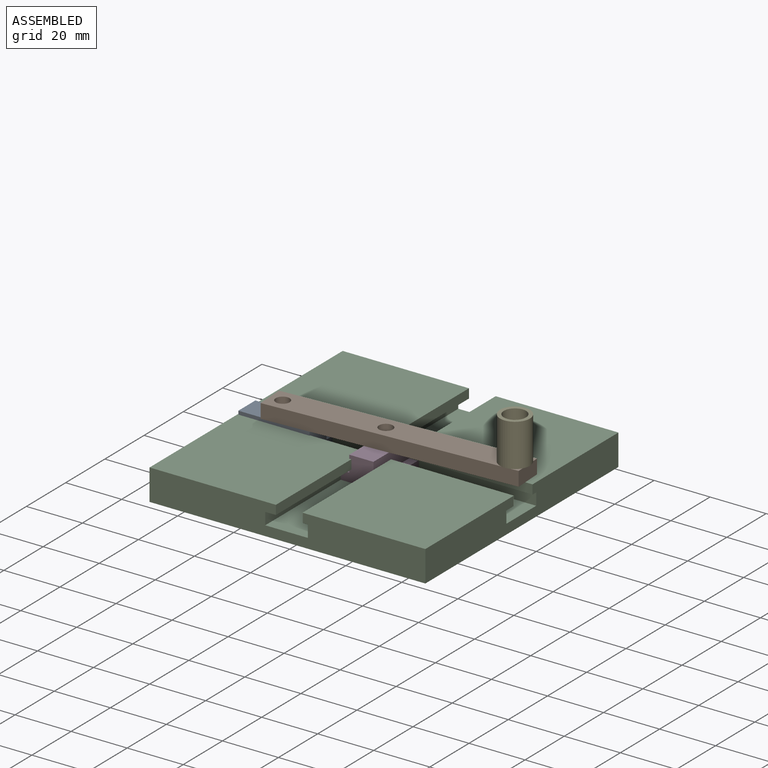
[diagram: assembled view]
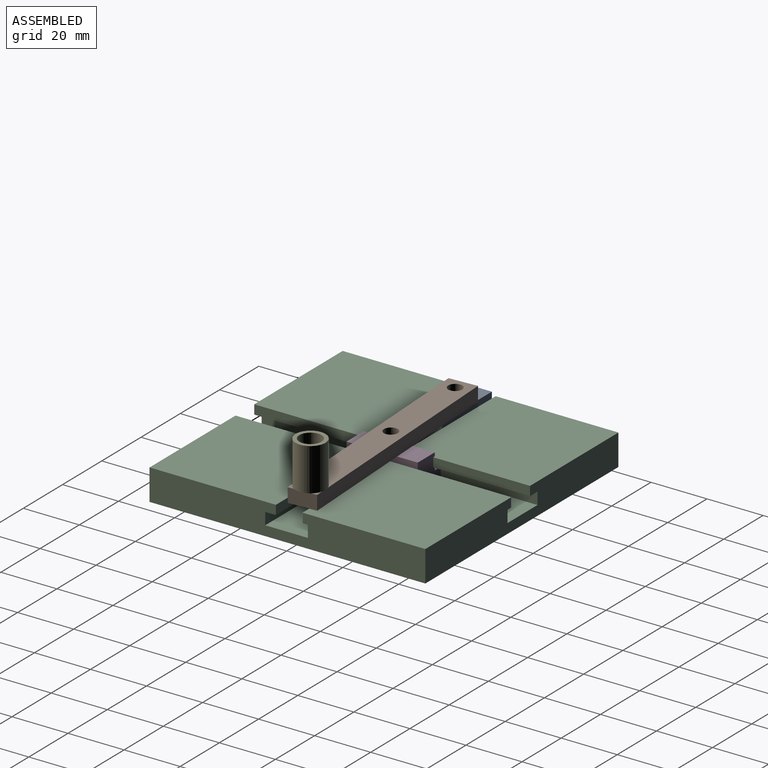
[diagram: assembled view, second angle]
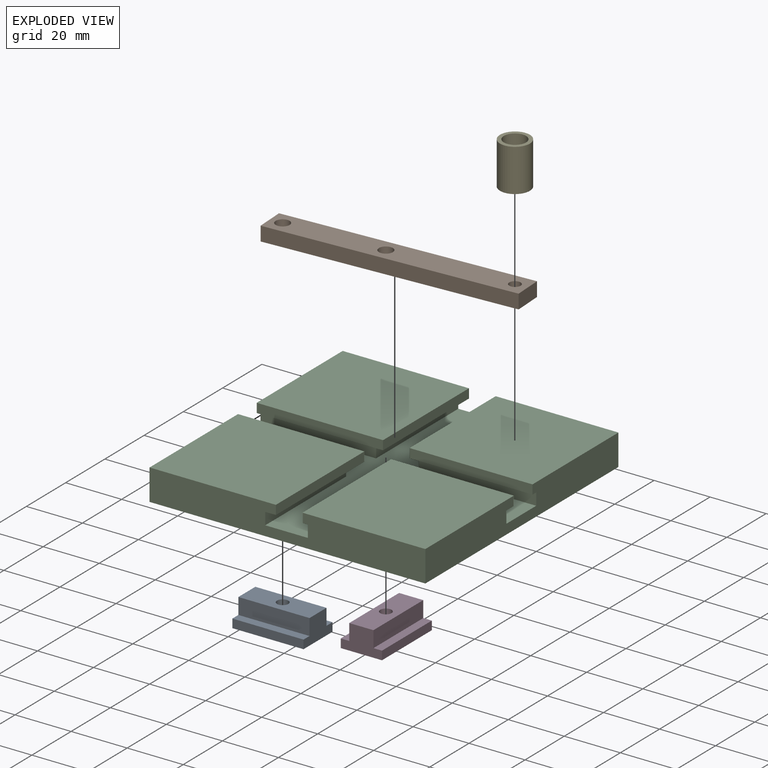
[diagram: exploded view]
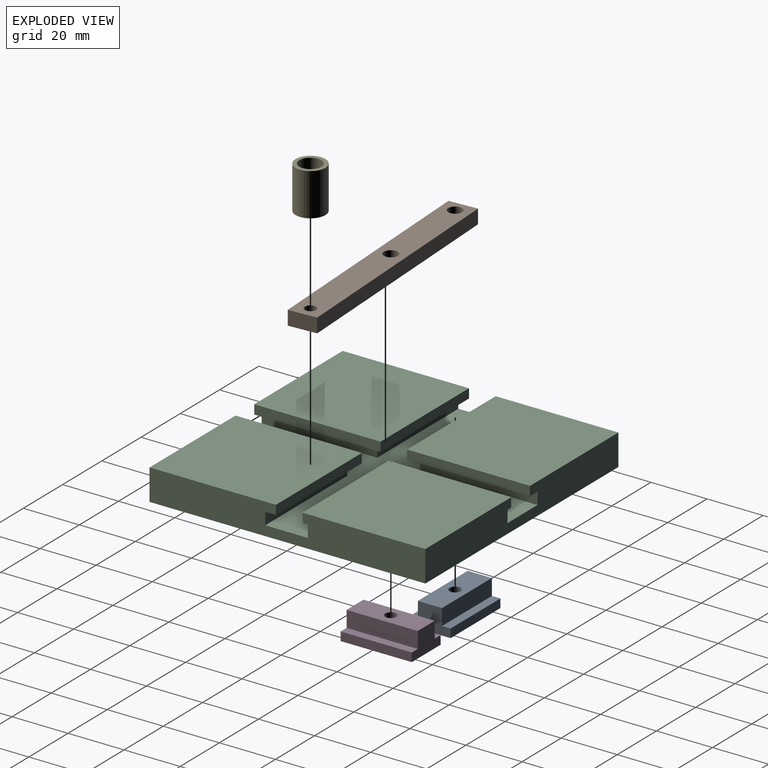
[diagram: exploded view, second angle]
ASSEMBLY  parts=5 mates=9
PART A: 11 faces, bbox 14.7x25.4x8.9 mm
  f0: plane 25.4x3.05mm, normal (0,0,1), area 77.4mm2, adj f1,f7,f8,f9
  f1: plane 25.4x3.1mm, normal (-1,0,0), area 78.7mm2, adj f0,f2,f8,f9
  f2: plane 25.4x14.73mm, normal (0,0,-1), area 361.4mm2, adj f1,f3,f8,f9,f10
  f3: plane 25.4x3.1mm, normal (1,0,0), area 78.7mm2, adj f2,f4,f8,f9
  f4: plane 25.4x3.05mm, normal (0,0,1), area 77.4mm2, adj f3,f5,f8,f9
  f5: plane 25.4x5.79mm, normal (1,0,0), area 147.1mm2, adj f4,f6,f8,f9
  f6: plane 25.4x8.64mm, normal (0,0,1), area 206.5mm2, adj f5,f7,f8,f9,f10
  f7: plane 25.4x5.79mm, normal (-1,0,0), area 147.1mm2, adj f0,f6,f8,f9
  f8: plane 14.73x8.89mm, normal (0,1,0), area 95.7mm2, adj f0,f1,f2,f3,f4,f5,f6,f7
  f9: plane 14.73x8.89mm, normal (0,-1,0), area 95.7mm2, adj f0,f1,f2,f3,f4,f5,f6,f7
  f10: cylinder r=2.02mm len=8.89mm, axis (0,0,-1), area 112.8mm2, adj f2,f6
PART B: 9 faces, bbox 10.2x88.9x5.1 mm
  f0: plane 10.16x5.08mm, normal (0,1,0), area 51.6mm2, adj f1,f6,f7,f8
  f1: plane 88.9x5.08mm, normal (-1,0,0), area 451.6mm2, adj f0,f2,f7,f8
  f2: plane 10.16x5.08mm, normal (0,-1,0), area 51.6mm2, adj f1,f6,f7,f8
  f3: cylinder r=2.49mm len=5.08mm, axis (0,0,-1), area 79.5mm2, adj f7,f8
  f4: cylinder r=2.49mm len=5.08mm, axis (0,0,-1), area 79.5mm2, adj f7,f8
  f5: cylinder r=2.02mm len=5.08mm, axis (0,0,-1), area 64.5mm2, adj f7,f8
  f6: plane 88.9x5.08mm, normal (1,0,0), area 451.6mm2, adj f0,f2,f7,f8
  f7: plane 88.9x10.16mm, normal (0,0,1), area 851.5mm2, adj f0,f1,f2,f3,f4,f5,f6
  f8: plane 88.9x10.16mm, normal (0,0,-1), area 851.5mm2, adj f0,f1,f2,f3,f4,f5,f6
PART C: 30 faces, bbox 98.4x98.4x11.1 mm
  f0: plane 45.09x43.82mm, normal (0,0,1), area 1975.4mm2, adj f5,f12,f15,f25
  f1: plane 45.09x45.09mm, normal (0,0,1), area 2032.7mm2, adj f4,f6,f15,f28
  f2: plane 45.09x45.09mm, normal (0,0,-1), area 329mm2, adj f4,f6,f8,f15,f26,f28
  f3: plane 45.09x43.82mm, normal (0,0,-1), area 245.6mm2, adj f5,f10,f12,f15,f22,f25
  f4: plane 98.43x11.11mm, normal (-1,0,0), area 996.5mm2, adj f1,f2,f15,f16,f17,f18,f19,f20
  f5: plane 98.43x11.11mm, normal (1,0,0), area 996.5mm2, adj f0,f3,f14,f15,f16,f18,f20,f21
  f6: plane 45.09x3.3mm, normal (1,0,0), area 148.9mm2, adj f1,f2,f15,f28
  f7: plane 43.82x3.3mm, normal (1,0,0), area 144.7mm2, adj f16,f17,f19,f29
  f8: plane 41.28x4.32mm, normal (1,0,0), area 178.2mm2, adj f2,f15,f20,f26
  f9: plane 41.91x4.32mm, normal (1,0,0), area 181mm2, adj f16,f19,f20,f27
  f10: plane 41.28x4.32mm, normal (-1,0,0), area 178.2mm2, adj f3,f15,f20,f22
  f11: plane 41.91x4.32mm, normal (-1,0,0), area 181mm2, adj f16,f20,f21,f24
  f12: plane 45.09x3.3mm, normal (-1,0,0), area 148.9mm2, adj f0,f3,f15,f25
  f13: plane 43.82x3.3mm, normal (-1,0,0), area 144.7mm2, adj f14,f16,f21,f23
  f14: plane 43.82x43.82mm, normal (0,0,1), area 1919.8mm2, adj f5,f13,f16,f23
  f15: plane 98.43x11.11mm, normal (0,-1,0), area 996.5mm2, adj f0,f1,f2,f3,f4,f5,f6,f8
  f16: plane 98.43x11.11mm, normal (0,1,0), area 996.5mm2, adj f4,f5,f7,f9,f11,f13,f14,f17
  f17: plane 45.09x43.82mm, normal (0,0,1), area 1975.4mm2, adj f4,f7,f16,f29
  f18: plane 98.43x98.43mm, normal (0,0,-1), area 9687.5mm2, adj f4,f5,f15,f16
  f19: plane 45.09x43.82mm, normal (0,0,-1), area 245.6mm2, adj f4,f7,f9,f16,f27,f29
  f20: plane 98.43x98.43mm, normal (0,0,1), area 2767.7mm2, adj f4,f5,f8,f9,f10,f11,f15,f16
  f21: plane 43.82x43.82mm, normal (0,0,-1), area 163.3mm2, adj f5,f11,f13,f16,f23,f24
  f22: plane 41.91x4.32mm, normal (0,1,0), area 181mm2, adj f3,f5,f10,f20
  f23: plane 43.82x3.3mm, normal (0,-1,0), area 144.7mm2, adj f5,f13,f14,f21
  f24: plane 41.91x4.32mm, normal (0,-1,0), area 181mm2, adj f5,f11,f20,f21
  f25: plane 43.82x3.3mm, normal (0,1,0), area 144.7mm2, adj f0,f3,f5,f12
  f26: plane 41.28x4.32mm, normal (0,1,0), area 178.2mm2, adj f2,f4,f8,f20
  f27: plane 41.28x4.32mm, normal (0,-1,0), area 178.2mm2, adj f4,f9,f19,f20
  f28: plane 45.09x3.3mm, normal (0,1,0), area 148.9mm2, adj f1,f2,f4,f6
  f29: plane 45.09x3.3mm, normal (0,-1,0), area 148.9mm2, adj f4,f7,f17,f19
PART D: same geometry as A
PART E: 6 faces, bbox 10.7x10.7x15.2 mm
  f0: plane 7.94x7.94mm, normal (0,0,1), area 30mm2, adj f1,f5
  f1: cylinder r=2.49mm len=5.19mm, axis (0,0,-1), area 81.1mm2, adj f0,f2
  f2: plane 10.67x10.67mm, normal (0,0,-1), area 69.9mm2, adj f1,f3
  f3: cylinder r=5.33mm len=15.24mm, axis (0,0,-1), area 510.8mm2, adj f2,f4
  f4: plane 10.67x10.67mm, normal (0,0,1), area 39.9mm2, adj f3,f5
  f5: cylinder r=3.97mm len=10.05mm, axis (0,0,-1), area 250.7mm2, adj f0,f4
PLACE A rot(axis=(0,0,1),90deg) t=(25.71,41.78,3.49)mm
PLACE B rot(axis=(0,0,1),93.1deg) t=(97.61,48.73,12.38)mm
PLACE C at identity
PLACE D rot(axis=(0,0,1),180deg) t=(56.01,63.88,3.49)mm
PLACE E rot(axis=(0,0,1),49.1deg) t=(92.9,53.56,17.46)mm
MATE cylindrical A.f10 <-> B.f4  axis (0,0,1) through (13.01,49.28,12.38)mm
MATE planar B.f7 <-> E.f1  axis (0,0,1) through (53.37,51.44,17.46)mm
MATE cylindrical D.f10 <-> B.f3  axis (0,0,1) through (48.51,51.18,12.38)mm
MATE cylindrical B.f5 <-> E.f1  axis (0,0,1) through (92.9,53.56,17.46)mm
MATE planar C.f8 <-> D.f3  axis (1,0,0) through (41.28,20.64,5.65)mm
MATE planar C.f20 <-> A.f10  axis (0,0,1) through (49.07,49.07,3.49)mm
MATE planar D.f10 <-> B.f8  axis (0,0,1) through (48.51,51.18,12.38)mm
MATE planar C.f27 <-> A.f3  axis (0,-1,0) through (20.64,56.52,5.65)mm
MATE planar C.f20 <-> D.f10  axis (0,0,1) through (49.07,49.07,3.49)mm
